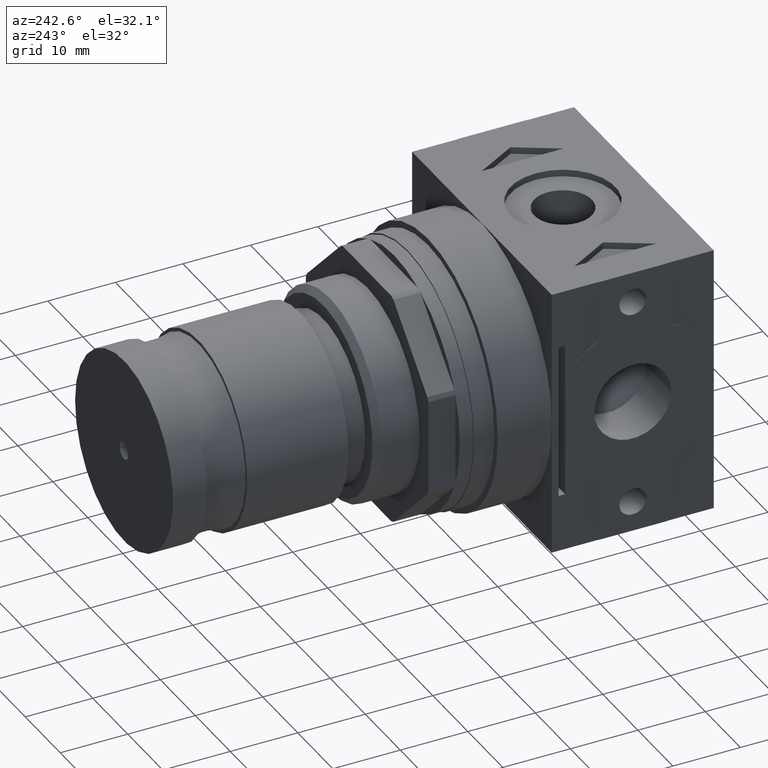
[diagram: clean part render]
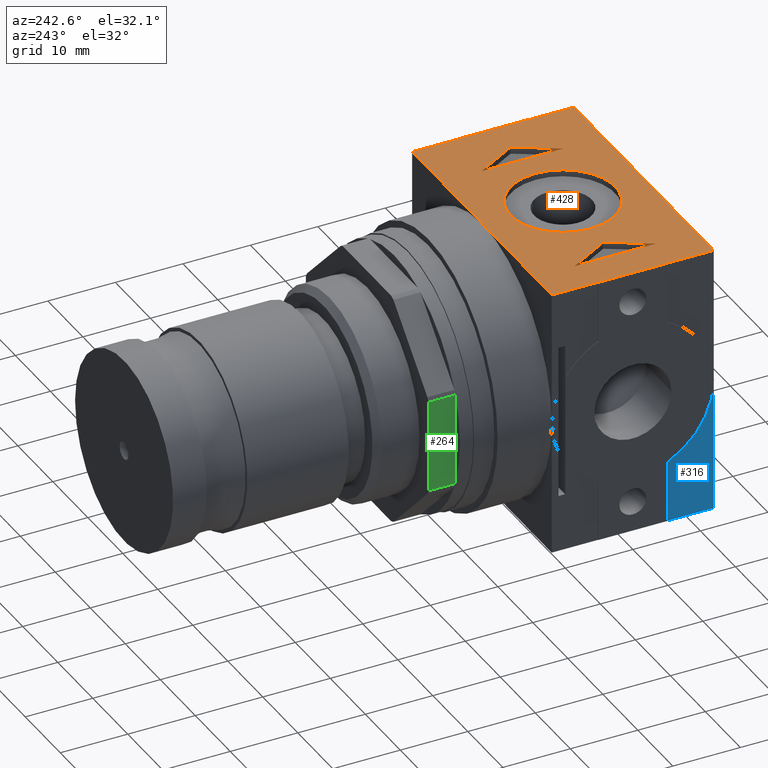
[diagram: same view with three faces highlighted in distinct colors, each labeled with its STEP entity id]
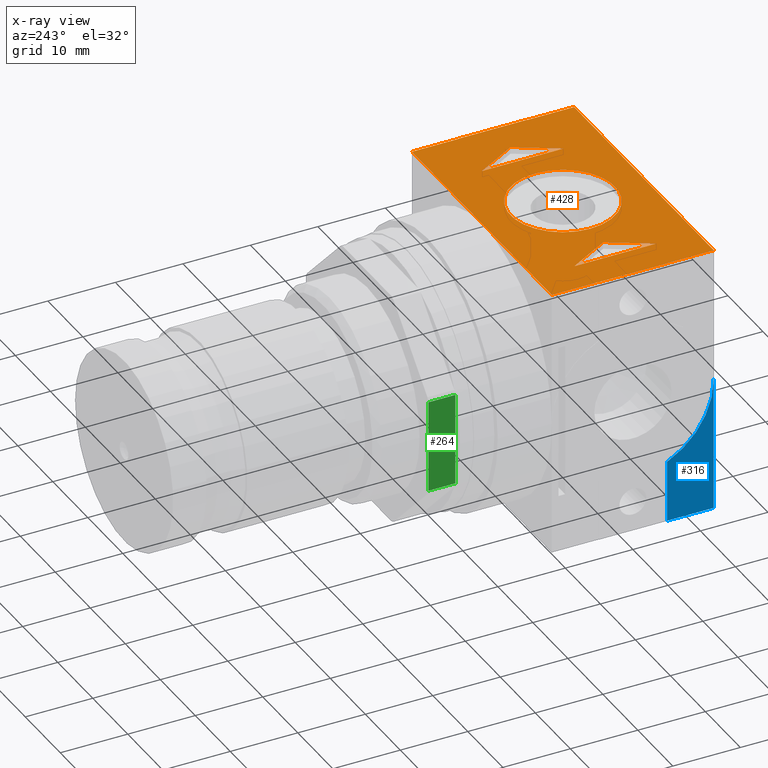
[diagram: x-ray of the same camera — body ghosted, the three highlighted faces saturated]
A machine part, auxiliary view with three faces highlighted in distinct colors.
The next image is the same camera in x-ray (body ghosted, the three faces saturated) — at least one of them is partly hidden behind the body in this view.
Their STEP definitions:

[orange] entity #428 — the highlighted planar face has unit normal (0, 0, -1).
#428 = ADVANCED_FACE( '', ( #874, #875, #876, #877 ), #878, .F. );
#874 = FACE_BOUND( '', #1319, .T. );
#875 = FACE_BOUND( '', #1320, .T. );
#876 = FACE_BOUND( '', #1321, .T. );
#877 = FACE_OUTER_BOUND( '', #1322, .T. );
#878 = PLANE( '', #1323 );
#1319 = EDGE_LOOP( '', ( #2264, #2265, #2266 ) );
#1320 = EDGE_LOOP( '', ( #2267, #2268, #2269 ) );
#1321 = EDGE_LOOP( '', ( #2270 ) );
#1322 = EDGE_LOOP( '', ( #2271, #2272, #2273, #2274, #2275, #2276, #2277, #2278, #2279, #2280, #2281, #2282 ) );
#1323 = AXIS2_PLACEMENT_3D( '', #2283, #2284, #2285 );
#2264 = ORIENTED_EDGE( '', *, *, #2664, .F. );
#2265 = ORIENTED_EDGE( '', *, *, #2749, .F. );
#2266 = ORIENTED_EDGE( '', *, *, #2635, .F. );
#2267 = ORIENTED_EDGE( '', *, *, #2790, .F. );
#2268 = ORIENTED_EDGE( '', *, *, #2777, .F. );
#2269 = ORIENTED_EDGE( '', *, *, #2467, .F. );
#2270 = ORIENTED_EDGE( '', *, *, #2680, .T. );
#2271 = ORIENTED_EDGE( '', *, *, #2455, .T. );
#2272 = ORIENTED_EDGE( '', *, *, #2735, .F. );
#2273 = ORIENTED_EDGE( '', *, *, #2589, .T. );
#2274 = ORIENTED_EDGE( '', *, *, #2784, .T. );
#2275 = ORIENTED_EDGE( '', *, *, #2616, .T. );
#2276 = ORIENTED_EDGE( '', *, *, #2759, .T. );
#2277 = ORIENTED_EDGE( '', *, *, #2723, .F. );
#2278 = ORIENTED_EDGE( '', *, *, #2595, .T. );
#2279 = ORIENTED_EDGE( '', *, *, #2781, .F. );
#2280 = ORIENTED_EDGE( '', *, *, #2507, .F. );
#2281 = ORIENTED_EDGE( '', *, *, #2791, .F. );
#2282 = ORIENTED_EDGE( '', *, *, #2556, .F. );
#2283 = CARTESIAN_POINT( '', ( 19.9500000000000, 12.0000000000000, 20.0000000000000 ) );
#2284 = DIRECTION( '', ( 0.000000000000000, 0.000000000000000, -1.00000000000000 ) );
#2285 = DIRECTION( '', ( -1.00000000000000, 0.000000000000000, 0.000000000000000 ) );
#2455 = EDGE_CURVE( '', #2874, #2871, #2875, .T. );
#2467 = EDGE_CURVE( '', #2893, #2894, #2895, .T. );
#2507 = EDGE_CURVE( '', #2959, #2961, #2962, .T. );
#2556 = EDGE_CURVE( '', #2874, #3048, #3049, .T. );
#2589 = EDGE_CURVE( '', #3102, #3100, #3103, .T. );
#2595 = EDGE_CURVE( '', #3107, #3111, #3113, .T. );
#2616 = EDGE_CURVE( '', #3140, #3141, #3142, .T. );
#2635 = EDGE_CURVE( '', #3168, #3169, #3170, .T. );
#2664 = EDGE_CURVE( '', #3209, #3168, #3210, .T. );
#2680 = EDGE_CURVE( '', #3233, #3233, #3234, .T. );
#2723 = EDGE_CURVE( '', #3107, #3291, #3292, .T. );
#2735 = EDGE_CURVE( '', #3102, #2871, #3307, .T. );
#2749 = EDGE_CURVE( '', #3169, #3209, #3321, .T. );
#2759 = EDGE_CURVE( '', #3141, #3291, #3331, .T. );
#2777 = EDGE_CURVE( '', #2894, #3351, #3352, .T. );
#2781 = EDGE_CURVE( '', #2961, #3111, #3356, .T. );
#2784 = EDGE_CURVE( '', #3100, #3140, #3359, .T. );
#2790 = EDGE_CURVE( '', #3351, #2893, #3365, .T. );
#2791 = EDGE_CURVE( '', #3048, #2959, #3366, .T. );
#2871 = VERTEX_POINT( '', #3456 );
#2874 = VERTEX_POINT( '', #3460 );
#2875 = LINE( '', #3461, #3462 );
#2893 = VERTEX_POINT( '', #3483 );
#2894 = VERTEX_POINT( '', #3484 );
#2895 = LINE( '', #3485, #3486 );
#2959 = VERTEX_POINT( '', #3570 );
#2961 = VERTEX_POINT( '', #3573 );
#2962 = LINE( '', #3574, #3575 );
#3048 = VERTEX_POINT( '', #3684 );
#3049 = LINE( '', #3685, #3686 );
#3100 = VERTEX_POINT( '', #3751 );
#3102 = VERTEX_POINT( '', #3754 );
#3103 = LINE( '', #3755, #3756 );
#3107 = VERTEX_POINT( '', #3761 );
#3111 = VERTEX_POINT( '', #3766 );
#3113 = LINE( '', #3769, #3770 );
#3140 = VERTEX_POINT( '', #3806 );
#3141 = VERTEX_POINT( '', #3807 );
#3142 = LINE( '', #3808, #3809 );
#3168 = VERTEX_POINT( '', #3845 );
#3169 = VERTEX_POINT( '', #3846 );
#3170 = LINE( '', #3847, #3848 );
#3209 = VERTEX_POINT( '', #3901 );
#3210 = LINE( '', #3902, #3903 );
#3233 = VERTEX_POINT( '', #3933 );
#3234 = CIRCLE( '', #3934, 7.75000000000000 );
#3291 = VERTEX_POINT( '', #4013 );
#3292 = LINE( '', #4014, #4015 );
#3307 = LINE( '', #4037, #4038 );
#3321 = LINE( '', #4056, #4057 );
#3331 = LINE( '', #4070, #4071 );
#3351 = VERTEX_POINT( '', #4096 );
#3352 = LINE( '', #4097, #4098 );
#3356 = LINE( '', #4104, #4105 );
#3359 = LINE( '', #4108, #4109 );
#3365 = LINE( '', #4117, #4118 );
#3366 = LINE( '', #4119, #4120 );
#3456 = CARTESIAN_POINT( '', ( 19.9500000000000, 5.10000000000000, 20.0000000000000 ) );
#3460 = CARTESIAN_POINT( '', ( 20.0000000000000, 5.10000000000000, 20.0000000000000 ) );
#3461 = CARTESIAN_POINT( '', ( 20.0000000000000, 5.10000000000000, 20.0000000000000 ) );
#3462 = VECTOR( '', #4190, 1000.00000000000 );
#3483 = CARTESIAN_POINT( '', ( -15.0000000000000, -6.06217782649107, 20.0000000000000 ) );
#3484 = CARTESIAN_POINT( '', ( -11.5000000000000, 0.000000000000000, 20.0000000000000 ) );
#3485 = CARTESIAN_POINT( '', ( -15.0000000000000, -6.06217782649107, 20.0000000000000 ) );
#3486 = VECTOR( '', #4206, 1000.00000000000 );
#3570 = CARTESIAN_POINT( '', ( 19.9500000000000, -5.10000000000000, 20.0000000000000 ) );
#3573 = CARTESIAN_POINT( '', ( 19.9500000000000, -12.0000000000000, 20.0000000000000 ) );
#3574 = CARTESIAN_POINT( '', ( 19.9500000000000, 12.0000000000000, 20.0000000000000 ) );
#3575 = VECTOR( '', #4252, 1000.00000000000 );
#3684 = CARTESIAN_POINT( '', ( 20.0000000000000, -5.10000000000000, 20.0000000000000 ) );
#3685 = CARTESIAN_POINT( '', ( 20.0000000000000, 5.10000000000000, 20.0000000000000 ) );
#3686 = VECTOR( '', #4333, 1000.00000000000 );
#3751 = CARTESIAN_POINT( '', ( -19.9500000000000, 12.0000000000000, 20.0000000000000 ) );
#3754 = CARTESIAN_POINT( '', ( 19.9500000000000, 12.0000000000000, 20.0000000000000 ) );
#3755 = CARTESIAN_POINT( '', ( 19.9500000000000, 12.0000000000000, 20.0000000000000 ) );
#3756 = VECTOR( '', #4379, 1000.00000000000 );
#3761 = CARTESIAN_POINT( '', ( -19.9500000000000, -5.10000000000000, 20.0000000000000 ) );
#3766 = CARTESIAN_POINT( '', ( -19.9500000000000, -12.0000000000000, 20.0000000000000 ) );
#3769 = CARTESIAN_POINT( '', ( -19.9500000000000, 12.0000000000000, 20.0000000000000 ) );
#3770 = VECTOR( '', #4386, 1000.00000000000 );
#3806 = CARTESIAN_POINT( '', ( -19.9500000000000, 5.10000000000000, 20.0000000000000 ) );
#3807 = CARTESIAN_POINT( '', ( -20.0000000000000, 5.10000000000000, 20.0000000000000 ) );
#3808 = CARTESIAN_POINT( '', ( 20.0000000000000, 5.10000000000000, 20.0000000000000 ) );
#3809 = VECTOR( '', #4399, 1000.00000000000 );
#3845 = CARTESIAN_POINT( '', ( 11.5000000000000, -6.06217782649107, 20.0000000000000 ) );
#3846 = CARTESIAN_POINT( '', ( 15.0000000000000, 0.000000000000000, 20.0000000000000 ) );
#3847 = CARTESIAN_POINT( '', ( 11.5000000000000, -6.06217782649107, 20.0000000000000 ) );
#3848 = VECTOR( '', #4419, 1000.00000000000 );
#3901 = CARTESIAN_POINT( '', ( 11.5000000000000, 6.06217782649107, 20.0000000000000 ) );
#3902 = CARTESIAN_POINT( '', ( 11.5000000000000, 6.06217782649107, 20.0000000000000 ) );
#3903 = VECTOR( '', #4449, 1000.00000000000 );
#3933 = CARTESIAN_POINT( '', ( -7.75000000000000, 0.000000000000000, 20.0000000000000 ) );
#3934 = AXIS2_PLACEMENT_3D( '', #4466, #4467, #4468 );
#4013 = CARTESIAN_POINT( '', ( -20.0000000000000, -5.10000000000000, 20.0000000000000 ) );
#4014 = CARTESIAN_POINT( '', ( 20.0000000000000, -5.10000000000000, 20.0000000000000 ) );
#4015 = VECTOR( '', #4509, 1000.00000000000 );
#4037 = CARTESIAN_POINT( '', ( 19.9500000000000, 12.0000000000000, 20.0000000000000 ) );
#4038 = VECTOR( '', #4520, 1000.00000000000 );
#4056 = CARTESIAN_POINT( '', ( 15.0000000000000, 0.000000000000000, 20.0000000000000 ) );
#4057 = VECTOR( '', #4528, 1000.00000000000 );
#4070 = CARTESIAN_POINT( '', ( -20.0000000000000, 5.10000000000000, 20.0000000000000 ) );
#4071 = VECTOR( '', #4535, 1000.00000000000 );
#4096 = CARTESIAN_POINT( '', ( -15.0000000000000, 6.06217782649107, 20.0000000000000 ) );
#4097 = CARTESIAN_POINT( '', ( -11.5000000000000, 0.000000000000000, 20.0000000000000 ) );
#4098 = VECTOR( '', #4550, 1000.00000000000 );
#4104 = CARTESIAN_POINT( '', ( 19.9500000000000, -12.0000000000000, 20.0000000000000 ) );
#4105 = VECTOR( '', #4553, 1000.00000000000 );
#4108 = CARTESIAN_POINT( '', ( -19.9500000000000, 12.0000000000000, 20.0000000000000 ) );
#4109 = VECTOR( '', #4554, 1000.00000000000 );
#4117 = CARTESIAN_POINT( '', ( -15.0000000000000, 6.06217782649107, 20.0000000000000 ) );
#4118 = VECTOR( '', #4557, 1000.00000000000 );
#4119 = CARTESIAN_POINT( '', ( 20.0000000000000, -5.10000000000000, 20.0000000000000 ) );
#4120 = VECTOR( '', #4558, 1000.00000000000 );
#4190 = DIRECTION( '', ( -1.00000000000000, -0.000000000000000, -0.000000000000000 ) );
#4206 = DIRECTION( '', ( 0.500000000000000, 0.866025403784439, 0.000000000000000 ) );
#4252 = DIRECTION( '', ( 0.000000000000000, -1.00000000000000, 0.000000000000000 ) );
#4333 = DIRECTION( '', ( 0.000000000000000, -1.00000000000000, 0.000000000000000 ) );
#4379 = DIRECTION( '', ( -1.00000000000000, -0.000000000000000, -0.000000000000000 ) );
#4386 = DIRECTION( '', ( 0.000000000000000, -1.00000000000000, 0.000000000000000 ) );
#4399 = DIRECTION( '', ( -1.00000000000000, -0.000000000000000, -0.000000000000000 ) );
#4419 = DIRECTION( '', ( 0.500000000000000, 0.866025403784439, 0.000000000000000 ) );
#4449 = DIRECTION( '', ( 0.000000000000000, -1.00000000000000, 0.000000000000000 ) );
#4466 = CARTESIAN_POINT( '', ( 0.000000000000000, 0.000000000000000, 20.0000000000000 ) );
#4467 = DIRECTION( '', ( -0.000000000000000, 0.000000000000000, -1.00000000000000 ) );
#4468 = DIRECTION( '', ( -1.00000000000000, 0.000000000000000, 0.000000000000000 ) );
#4509 = DIRECTION( '', ( -1.00000000000000, -0.000000000000000, -0.000000000000000 ) );
#4520 = DIRECTION( '', ( 0.000000000000000, -1.00000000000000, 0.000000000000000 ) );
#4528 = DIRECTION( '', ( -0.500000000000000, 0.866025403784439, 0.000000000000000 ) );
#4535 = DIRECTION( '', ( 0.000000000000000, -1.00000000000000, 0.000000000000000 ) );
#4550 = DIRECTION( '', ( -0.500000000000000, 0.866025403784439, 0.000000000000000 ) );
#4553 = DIRECTION( '', ( -1.00000000000000, -0.000000000000000, -0.000000000000000 ) );
#4554 = DIRECTION( '', ( 0.000000000000000, -1.00000000000000, 0.000000000000000 ) );
#4557 = DIRECTION( '', ( 0.000000000000000, -1.00000000000000, 0.000000000000000 ) );
#4558 = DIRECTION( '', ( -1.00000000000000, -0.000000000000000, -0.000000000000000 ) );

[blue] entity #316 — the highlighted planar face has unit normal (1, 0, 0).
#316 = ADVANCED_FACE( '', ( #685 ), #686, .F. );
#685 = FACE_OUTER_BOUND( '', #1130, .T. );
#686 = PLANE( '', #1131 );
#1130 = EDGE_LOOP( '', ( #1800, #1801, #1802, #1803 ) );
#1131 = AXIS2_PLACEMENT_3D( '', #1804, #1805, #1806 );
#1800 = ORIENTED_EDGE( '', *, *, #2642, .F. );
#1801 = ORIENTED_EDGE( '', *, *, #2575, .F. );
#1802 = ORIENTED_EDGE( '', *, *, #2643, .F. );
#1803 = ORIENTED_EDGE( '', *, *, #2644, .F. );
#1804 = CARTESIAN_POINT( '', ( -19.9500000000000, 0.000000000000000, 0.000000000000000 ) );
#1805 = DIRECTION( '', ( 1.00000000000000, 0.000000000000000, 0.000000000000000 ) );
#1806 = DIRECTION( '', ( 0.000000000000000, 0.000000000000000, -1.00000000000000 ) );
#2575 = EDGE_CURVE( '', #3077, #3080, #3081, .T. );
#2642 = EDGE_CURVE( '', #3080, #3109, #3180, .F. );
#2643 = EDGE_CURVE( '', #3181, #3077, #3182, .T. );
#2644 = EDGE_CURVE( '', #3109, #3181, #3183, .T. );
#3077 = VERTEX_POINT( '', #3723 );
#3080 = VERTEX_POINT( '', #3727 );
#3081 = LINE( '', #3728, #3729 );
#3109 = VERTEX_POINT( '', #3764 );
#3180 = CIRCLE( '', #3861, 12.0000000000000 );
#3181 = VERTEX_POINT( '', #3862 );
#3182 = LINE( '', #3863, #3864 );
#3183 = LINE( '', #3865, #3866 );
#3723 = CARTESIAN_POINT( '', ( -19.9500000000000, -5.10000000000000, -20.0000000000000 ) );
#3727 = CARTESIAN_POINT( '', ( -19.9500000000000, -5.10000000000000, -10.8623201941390 ) );
#3728 = CARTESIAN_POINT( '', ( -19.9500000000000, -5.10000000000000, 0.000000000000000 ) );
#3729 = VECTOR( '', #4359, 1000.00000000000 );
#3764 = CARTESIAN_POINT( '', ( -19.9500000000000, -12.0000000000000, 1.73472347597681E-015 ) );
#3861 = AXIS2_PLACEMENT_3D( '', #4426, #4427, #4428 );
#3862 = CARTESIAN_POINT( '', ( -19.9500000000000, -12.0000000000000, -20.0000000000000 ) );
#3863 = CARTESIAN_POINT( '', ( -19.9500000000000, -12.0000000000000, -20.0000000000000 ) );
#3864 = VECTOR( '', #4429, 1000.00000000000 );
#3865 = CARTESIAN_POINT( '', ( -19.9500000000000, -12.0000000000000, 20.0000000000000 ) );
#3866 = VECTOR( '', #4430, 1000.00000000000 );
#4359 = DIRECTION( '', ( 0.000000000000000, -0.000000000000000, 1.00000000000000 ) );
#4426 = CARTESIAN_POINT( '', ( -19.9500000000000, 8.67361737988404E-015, 1.73472347597681E-015 ) );
#4427 = DIRECTION( '', ( 1.00000000000000, 0.000000000000000, 0.000000000000000 ) );
#4428 = DIRECTION( '', ( 0.000000000000000, 0.000000000000000, -1.00000000000000 ) );
#4429 = DIRECTION( '', ( 0.000000000000000, 1.00000000000000, 0.000000000000000 ) );
#4430 = DIRECTION( '', ( 0.000000000000000, 0.000000000000000, -1.00000000000000 ) );

[green] entity #264 — the highlighted planar face has unit normal (-1, 0, 0).
#264 = ADVANCED_FACE( '', ( #596 ), #597, .T. );
#596 = FACE_OUTER_BOUND( '', #1041, .T. );
#597 = PLANE( '', #1042 );
#1041 = EDGE_LOOP( '', ( #1566, #1567, #1568, #1569 ) );
#1042 = AXIS2_PLACEMENT_3D( '', #1570, #1571, #1572 );
#1566 = ORIENTED_EDGE( '', *, *, #2520, .T. );
#1567 = ORIENTED_EDGE( '', *, *, #2521, .T. );
#1568 = ORIENTED_EDGE( '', *, *, #2522, .T. );
#1569 = ORIENTED_EDGE( '', *, *, #2460, .T. );
#1570 = CARTESIAN_POINT( '', ( 5.00000000000000, 7.24873734152916, 17.5000000000000 ) );
#1571 = DIRECTION( '', ( -0.000000000000000, 0.000000000000000, 1.00000000000000 ) );
#1572 = DIRECTION( '', ( 1.00000000000000, 0.000000000000000, 0.000000000000000 ) );
#2460 = EDGE_CURVE( '', #2880, #2881, #2883, .T. );
#2520 = EDGE_CURVE( '', #2881, #2981, #2982, .T. );
#2521 = EDGE_CURVE( '', #2981, #2983, #2984, .T. );
#2522 = EDGE_CURVE( '', #2983, #2880, #2985, .F. );
#2880 = VERTEX_POINT( '', #3469 );
#2881 = VERTEX_POINT( '', #3470 );
#2883 = LINE( '', #3472, #3473 );
#2981 = VERTEX_POINT( '', #3599 );
#2982 = LINE( '', #3600, #3601 );
#2983 = VERTEX_POINT( '', #3602 );
#2984 = LINE( '', #3603, #3604 );
#2985 = LINE( '', #3605, #3606 );
#3469 = CARTESIAN_POINT( '', ( 5.00000000000000, 6.86949779823824, 17.5000000000000 ) );
#3470 = CARTESIAN_POINT( '', ( 5.00000000000000, -6.86949779823824, 17.5000000000000 ) );
#3472 = CARTESIAN_POINT( '', ( 5.00000000000000, 7.24873734152916, 17.5000000000000 ) );
#3473 = VECTOR( '', #4196, 1000.00000000000 );
#3599 = CARTESIAN_POINT( '', ( 9.00000000000000, -6.86949779823824, 17.5000000000000 ) );
#3600 = CARTESIAN_POINT( '', ( 9.00000000000000, -6.86949779823824, 17.5000000000000 ) );
#3601 = VECTOR( '', #4267, 1000.00000000000 );
#3602 = CARTESIAN_POINT( '', ( 9.00000000000000, 6.86949779823824, 17.5000000000000 ) );
#3603 = CARTESIAN_POINT( '', ( 9.00000000000000, 18.8000000000000, 17.5000000000000 ) );
#3604 = VECTOR( '', #4268, 1000.00000000000 );
#3605 = CARTESIAN_POINT( '', ( 9.00000000000000, 6.86949779823824, 17.5000000000000 ) );
#3606 = VECTOR( '', #4269, 1000.00000000000 );
#4196 = DIRECTION( '', ( 0.000000000000000, -1.00000000000000, 0.000000000000000 ) );
#4267 = DIRECTION( '', ( 1.00000000000000, -0.000000000000000, -0.000000000000000 ) );
#4268 = DIRECTION( '', ( 0.000000000000000, 1.00000000000000, 0.000000000000000 ) );
#4269 = DIRECTION( '', ( 1.00000000000000, -0.000000000000000, -0.000000000000000 ) );